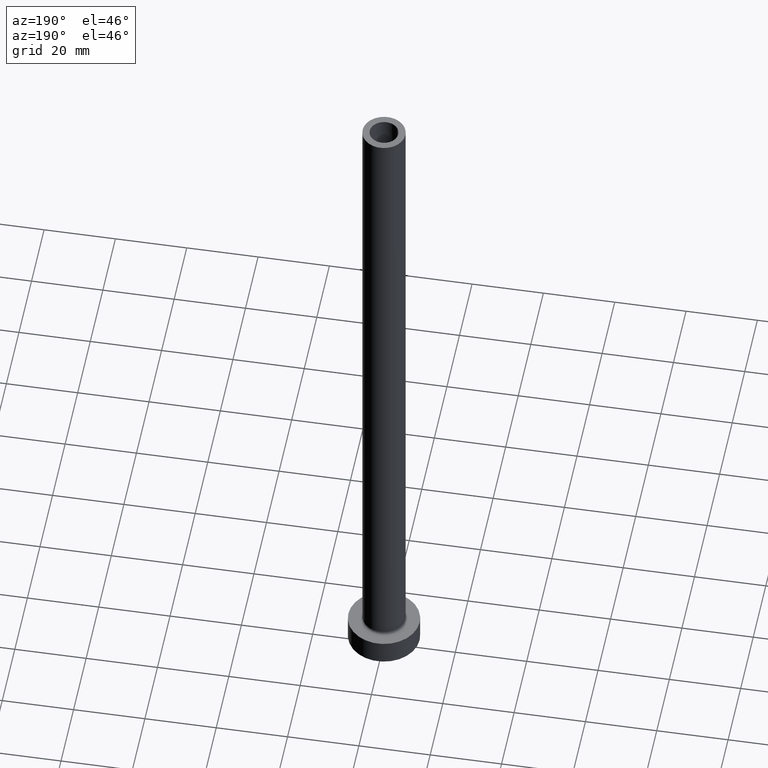
[diagram: clean part render]
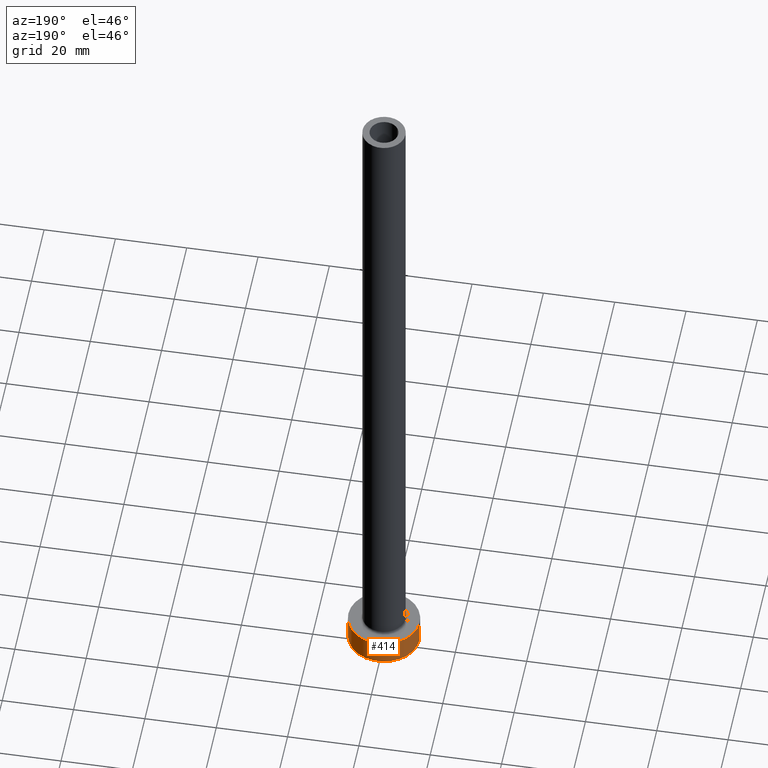
[diagram: same view with one face highlighted and labeled with its STEP entity id]
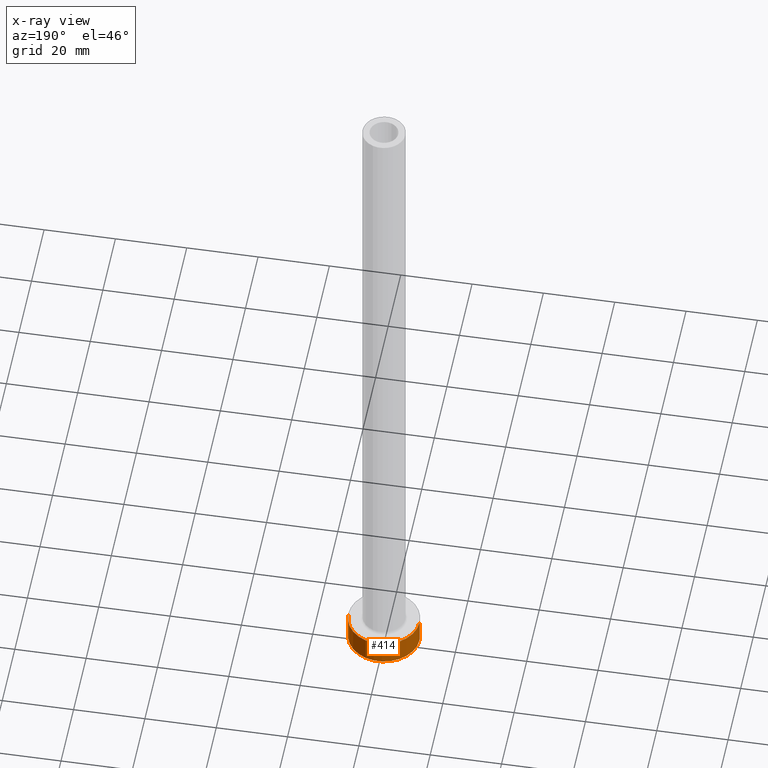
[diagram: x-ray of the same camera — body ghosted, the highlighted face saturated]
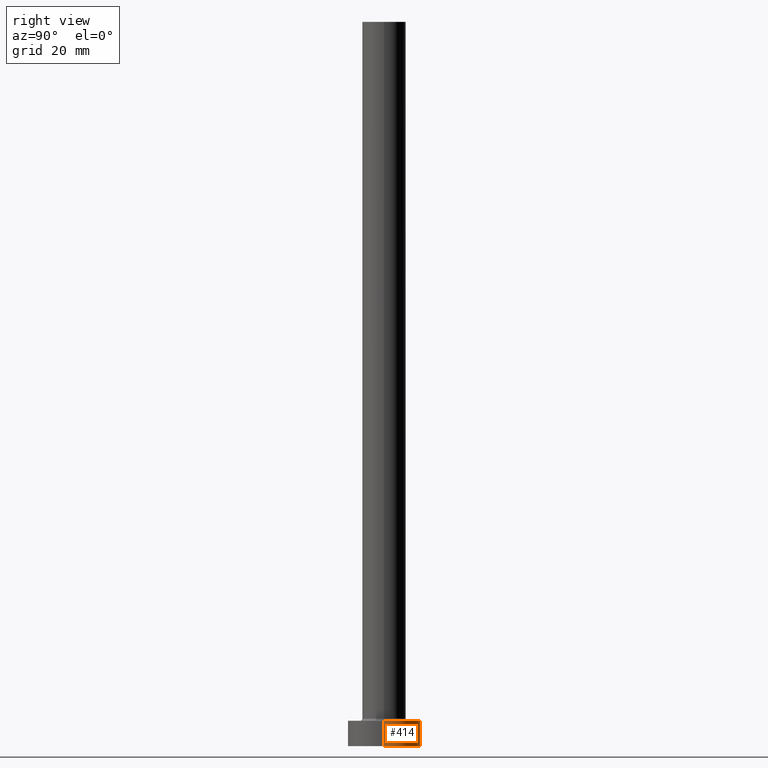
[diagram: same view with one face highlighted and labeled with its STEP entity id]
A machine part, auxiliary view. The second image highlights one B-rep face of the part: STEP entity #414.
The next image is the same camera in x-ray: the body ghosted, the highlighted face saturated — about 0% of this face is hidden behind the body in this view.
A second angle (right view) of the same face is appended — the face is thin or edge-on in the first view.
In plain terms, the highlighted cylindrical surface (edge-blend (fillet) strip) has radius 10 mm, axis along (-0, -0, -1).
Its self-contained STEP definition (entity closure, byte-faithful):
#3 = EDGE_CURVE ( 'NONE', #444, #308, #278, .T. ) ;
#64 = EDGE_CURVE ( 'NONE', #308, #373, #263, .T. ) ;
#65 = CARTESIAN_POINT ( 'NONE',  ( 10.00000000000000000, 1.224646799147353256E-15, 0.000000000000000000 ) ) ;
#69 = CARTESIAN_POINT ( 'NONE',  ( -10.00000000000000000, 0.000000000000000000, 0.000000000000000000 ) ) ;
#80 = ORIENTED_EDGE ( 'NONE', *, *, #64, .F. ) ;
#84 = DIRECTION ( 'NONE',  ( 1.000000000000000000, 0.000000000000000000, 0.000000000000000000 ) ) ;
#90 = CARTESIAN_POINT ( 'NONE',  ( -10.00000000000000000, 0.000000000000000000, 7.000000000000000000 ) ) ;
#105 = ORIENTED_EDGE ( 'NONE', *, *, #3, .F. ) ;
#114 = VERTEX_POINT ( 'NONE', #65 ) ;
#121 = DIRECTION ( 'NONE',  ( -0.000000000000000000, -0.000000000000000000, -1.000000000000000000 ) ) ;
#122 = EDGE_CURVE ( 'NONE', #444, #114, #400, .T. ) ;
#141 = ORIENTED_EDGE ( 'NONE', *, *, #122, .T. ) ;
#165 = AXIS2_PLACEMENT_3D ( 'NONE', #186, #229, #453 ) ;
#173 = AXIS2_PLACEMENT_3D ( 'NONE', #176, #254, #84 ) ;
#176 = CARTESIAN_POINT ( 'NONE',  ( 0.000000000000000000, 0.000000000000000000, 7.000000000000000000 ) ) ;
#186 = CARTESIAN_POINT ( 'NONE',  ( 0.000000000000000000, 0.000000000000000000, 0.000000000000000000 ) ) ;
#192 = DIRECTION ( 'NONE',  ( -1.000000000000000000, 0.000000000000000000, 0.000000000000000000 ) ) ;
#222 = EDGE_LOOP ( 'NONE', ( #105, #141, #260, #80 ) ) ;
#229 = DIRECTION ( 'NONE',  ( 0.000000000000000000, 0.000000000000000000, 1.000000000000000000 ) ) ;
#237 = VECTOR ( 'NONE', #121, 1000.000000000000000 ) ;
#254 = DIRECTION ( 'NONE',  ( 0.000000000000000000, 0.000000000000000000, 1.000000000000000000 ) ) ;
#257 = CARTESIAN_POINT ( 'NONE',  ( 10.00000000000000000, 1.224646799147353256E-15, 7.000000000000000000 ) ) ;
#260 = ORIENTED_EDGE ( 'NONE', *, *, #310, .T. ) ;
#263 = LINE ( 'NONE', #90, #237 ) ;
#278 = CIRCLE ( 'NONE', #173, 10.00000000000000000 ) ;
#298 = VECTOR ( 'NONE', #316, 1000.000000000000000 ) ;
#308 = VERTEX_POINT ( 'NONE', #451 ) ;
#310 = EDGE_CURVE ( 'NONE', #114, #373, #422, .T. ) ;
#316 = DIRECTION ( 'NONE',  ( -0.000000000000000000, -0.000000000000000000, -1.000000000000000000 ) ) ;
#335 = AXIS2_PLACEMENT_3D ( 'NONE', #376, #409, #192 ) ;
#368 = CYLINDRICAL_SURFACE ( 'NONE', #335, 10.00000000000000000 ) ;
#372 = FACE_OUTER_BOUND ( 'NONE', #222, .T. ) ;
#373 = VERTEX_POINT ( 'NONE', #69 ) ;
#376 = CARTESIAN_POINT ( 'NONE',  ( 0.000000000000000000, 0.000000000000000000, 7.000000000000000000 ) ) ;
#400 = LINE ( 'NONE', #403, #298 ) ;
#403 = CARTESIAN_POINT ( 'NONE',  ( 10.00000000000000000, 1.224646799147353256E-15, 7.000000000000000000 ) ) ;
#409 = DIRECTION ( 'NONE',  ( -0.000000000000000000, -0.000000000000000000, -1.000000000000000000 ) ) ;
#414 = ADVANCED_FACE ( 'NONE', ( #372 ), #368, .T. ) ;
#422 = CIRCLE ( 'NONE', #165, 10.00000000000000000 ) ;
#444 = VERTEX_POINT ( 'NONE', #257 ) ;
#451 = CARTESIAN_POINT ( 'NONE',  ( -10.00000000000000000, 0.000000000000000000, 7.000000000000000000 ) ) ;
#453 = DIRECTION ( 'NONE',  ( 1.000000000000000000, 0.000000000000000000, 0.000000000000000000 ) ) ;